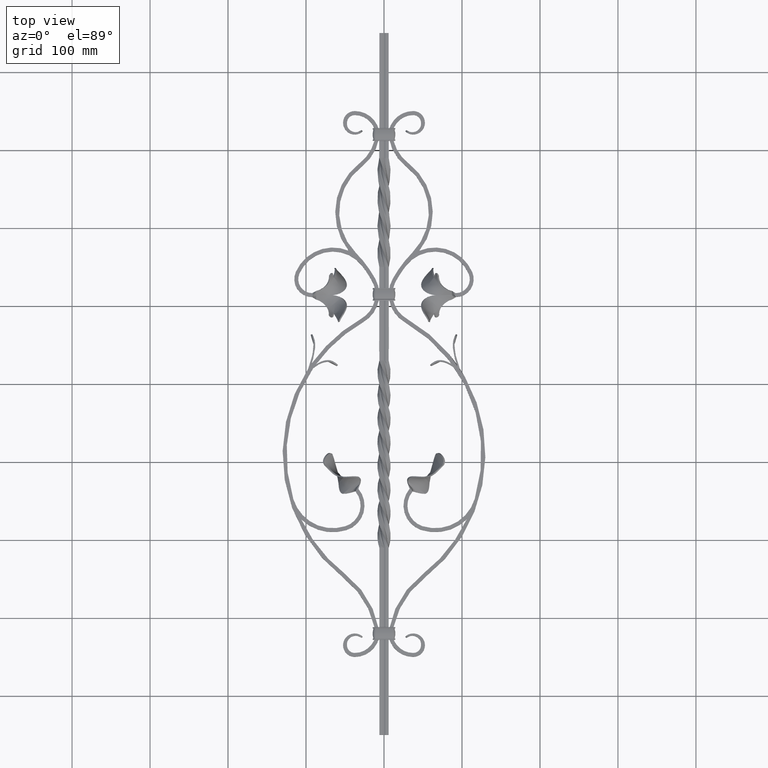
[diagram: clean part render]
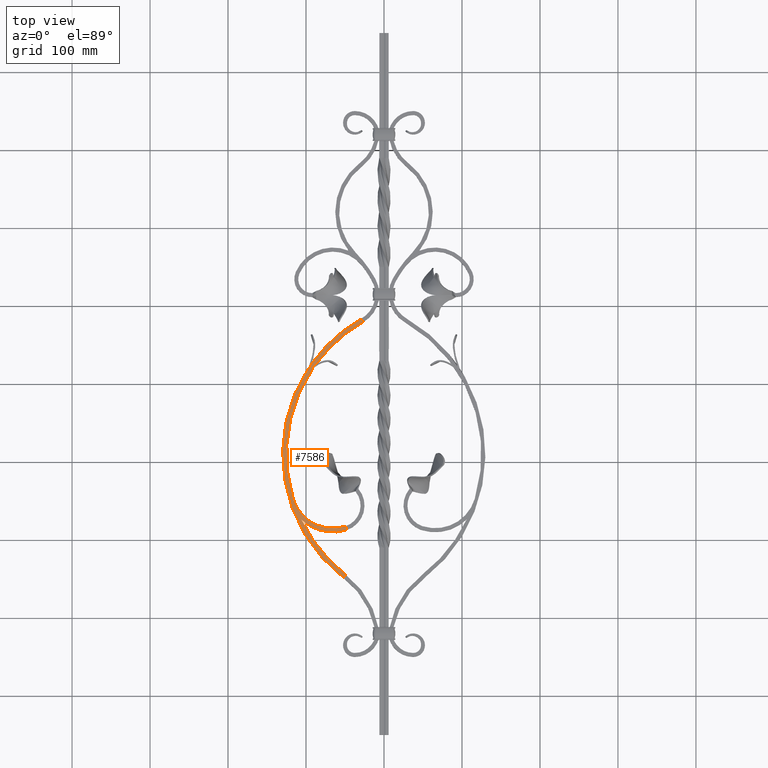
[diagram: same view with one face highlighted and labeled with its STEP entity id]
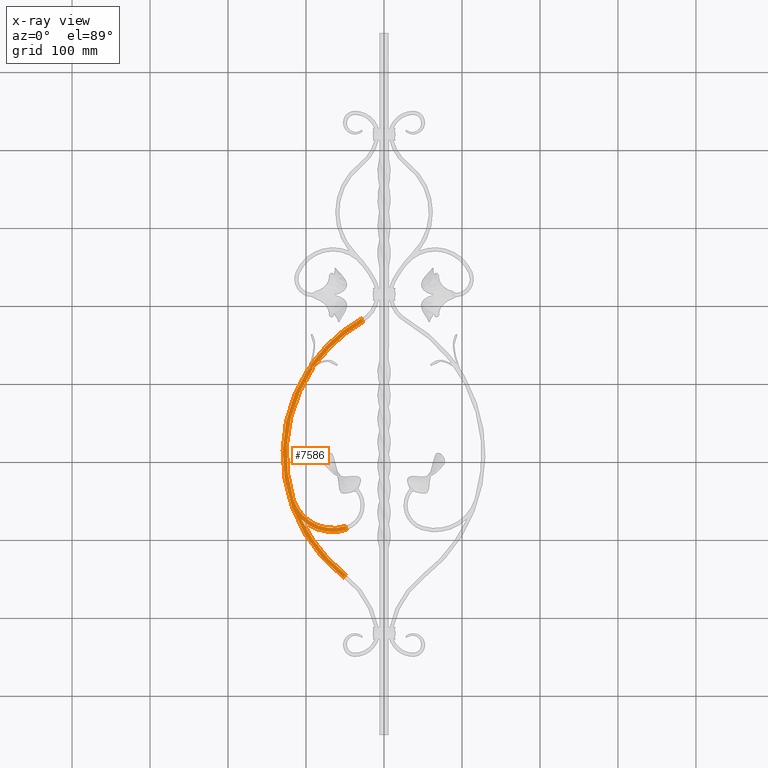
[diagram: x-ray of the same camera — body ghosted, the highlighted face saturated]
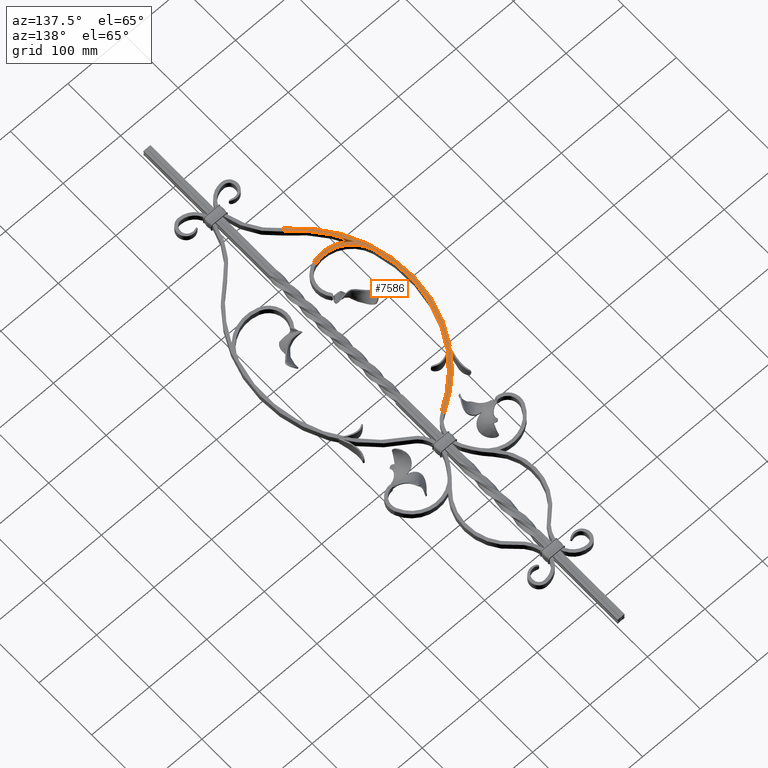
[diagram: same view with one face highlighted and labeled with its STEP entity id]
A machine part, top view. The second image highlights one B-rep face of the part: STEP entity #7586.
The next image is the same camera in x-ray: the body ghosted, the highlighted face saturated — about 0% of this face is hidden behind the body in this view.
A second angle (auxiliary view) of the same face is appended — the face is thin or edge-on in the first view.
In plain terms, the highlighted planar face has unit normal (0, 0, 1).
Its self-contained STEP definition (entity closure, byte-faithful):
#441 = CARTESIAN_POINT ( 'NONE',  ( -92.68707954751030798, 21.12756464451187455, 6.000000000000000000 ) ) ;
#1417 = ORIENTED_EDGE ( 'NONE', *, *, #10354, .F. ) ;
#2220 = VERTEX_POINT ( 'NONE', #42111 ) ;
#2648 = DIRECTION ( 'NONE',  ( 1.000000000000000000, 0.000000000000000000, -0.000000000000000000 ) ) ;
#3033 = CIRCLE ( 'NONE', #44282, 53.00000000000003553 ) ;
#4546 = CARTESIAN_POINT ( 'NONE',  ( -89.33199035881801819, 23.76567454288623082, 6.000000000000002665 ) ) ;
#4735 = CARTESIAN_POINT ( 'NONE',  ( -92.68707954751032219, 21.12756464451187810, 6.000000000000001776 ) ) ;
#5580 = VERTEX_POINT ( 'NONE', #45785 ) ;
#5993 = CARTESIAN_POINT ( 'NONE',  ( -49.05424102247574325, -244.4911442810934545, 6.000000000000000000 ) ) ;
#6283 = ORIENTED_EDGE ( 'NONE', *, *, #12544, .F. ) ;
#6460 = DIRECTION ( 'NONE',  ( -0.4961335752352377670, 0.8682462067433986963, 0.000000000000000000 ) ) ;
#6761 = CARTESIAN_POINT ( 'NONE',  ( -49.05424102247577167, -244.4911442810934830, 6.000000000000000000 ) ) ;
#6827 = CARTESIAN_POINT ( 'NONE',  ( -92.76190309228640274, 26.26098681829976300, 6.000000000000000000 ) ) ;
#6929 = CARTESIAN_POINT ( 'NONE',  ( -26.69155741923248826, 79.40190552352058262, 6.000000000000000000 ) ) ;
#7039 = VECTOR ( 'NONE', #17590, 1000.000000000000114 ) ;
#7117 = EDGE_CURVE ( 'NONE', #45499, #17498, #39099, .T. ) ;
#7206 = LINE ( 'NONE', #8424, #32608 ) ;
#7507 = CIRCLE ( 'NONE', #27159, 195.1081432478146667 ) ;
#7586 = ADVANCED_FACE ( 'NONE', ( #36505 ), #10287, .T. ) ;
#7930 = CARTESIAN_POINT ( 'NONE',  ( -91.03524294540049766, 19.99998500655710743, 6.000000000000001776 ) ) ;
#8424 = CARTESIAN_POINT ( 'NONE',  ( -47.89980786186133344, -187.2165890111591580, 6.000000000000000000 ) ) ;
#8585 = EDGE_CURVE ( 'NONE', #51696, #53075, #18382, .T. ) ;
#8860 = VERTEX_POINT ( 'NONE', #27640 ) ;
#9372 = EDGE_CURVE ( 'NONE', #25676, #37762, #53118, .T. ) ;
#9963 = EDGE_CURVE ( 'NONE', #35202, #5580, #3033, .T. ) ;
#10045 = ORIENTED_EDGE ( 'NONE', *, *, #49879, .F. ) ;
#10144 = ORIENTED_EDGE ( 'NONE', *, *, #18787, .F. ) ;
#10287 = PLANE ( 'NONE',  #34968 ) ;
#10354 = EDGE_CURVE ( 'NONE', #51696, #35202, #52428, .T. ) ;
#10403 = CARTESIAN_POINT ( 'NONE',  ( -92.68707954751032219, 21.12756464451187810, 6.000000000000001776 ) ) ;
#10970 = ORIENTED_EDGE ( 'NONE', *, *, #53336, .T. ) ;
#11957 = CARTESIAN_POINT ( 'NONE',  ( -87.55347316067336294, 24.93477423794779213, 6.000000000000000000 ) ) ;
#12171 = DIRECTION ( 'NONE',  ( -0.4961335752352377670, 0.8682462067433986963, 0.000000000000000000 ) ) ;
#12544 = EDGE_CURVE ( 'NONE', #2220, #40601, #7507, .T. ) ;
#13085 = AXIS2_PLACEMENT_3D ( 'NONE', #32931, #20230, #12171 ) ;
#14299 = AXIS2_PLACEMENT_3D ( 'NONE', #25065, #21518, #29550 ) ;
#15551 = DIRECTION ( 'NONE',  ( 0.000000000000000000, 0.000000000000000000, 1.000000000000000000 ) ) ;
#16274 = CARTESIAN_POINT ( 'NONE',  ( -97.05426983088500492, 19.99998500655710032, 6.000000000000000000 ) ) ;
#16503 = VERTEX_POINT ( 'NONE', #45197 ) ;
#17498 = VERTEX_POINT ( 'NONE', #11957 ) ;
#17590 = DIRECTION ( 'NONE',  ( -0.8259183010549199233, 0.5637898189773867808, -0.000000000000000000 ) ) ;
#18382 = LINE ( 'NONE', #441, #7039 ) ;
#18511 = B_SPLINE_CURVE_WITH_KNOTS ( 'NONE', 3,
 ( #42991, #4546, #25984, #4735 ),
 .UNSPECIFIED., .F., .F.,
 ( 4, 4 ),
 ( 0.03132545314710610124, 0.03769082985827833937 ),
 .UNSPECIFIED. ) ;
#18679 = CARTESIAN_POINT ( 'NONE',  ( -52.10799322078705842, -248.4502600297560946, 6.000000000000000000 ) ) ;
#18787 = EDGE_CURVE ( 'NONE', #5580, #16503, #7206, .T. ) ;
#19087 = DIRECTION ( 'NONE',  ( -0.4961335752352377670, 0.8682462067433986963, 0.000000000000000000 ) ) ;
#19806 = DIRECTION ( 'NONE',  ( 0.000000000000000000, 0.000000000000000000, 1.000000000000000000 ) ) ;
#20006 = ORIENTED_EDGE ( 'NONE', *, *, #28323, .T. ) ;
#20230 = DIRECTION ( 'NONE',  ( 0.000000000000000000, 0.000000000000000000, 1.000000000000000000 ) ) ;
#20532 = CIRCLE ( 'NONE', #13085, 200.1081432478146098 ) ;
#20552 = CARTESIAN_POINT ( 'NONE',  ( -95.38354908593575487, 18.90057962527309598, 6.000000000000000000 ) ) ;
#20656 = CARTESIAN_POINT ( 'NONE',  ( -29.17222529540864784, 83.74313655723759098, 6.000000000000000000 ) ) ;
#20744 = DIRECTION ( 'NONE',  ( 0.3060664284284465575, -0.9520101582383744265, 0.000000000000000000 ) ) ;
#20907 = CARTESIAN_POINT ( 'NONE',  ( 70.10814324781469509, -89.99999975614214520, 6.000000000000000000 ) ) ;
#21518 = DIRECTION ( 'NONE',  ( 0.000000000000000000, 0.000000000000000000, 1.000000000000000000 ) ) ;
#22586 = ORIENTED_EDGE ( 'NONE', *, *, #55405, .F. ) ;
#23077 = ORIENTED_EDGE ( 'NONE', *, *, #43384, .T. ) ;
#24453 = CARTESIAN_POINT ( 'NONE',  ( -92.76190309228640274, 26.26098681829976300, 6.000000000000000000 ) ) ;
#24892 = CARTESIAN_POINT ( 'NONE',  ( -97.05426983088500492, 19.99998500655710032, 6.000000000000000000 ) ) ;
#25065 = CARTESIAN_POINT ( 'NONE',  ( -65.65166071071115539, -131.9999998333333338, 6.000000000000000000 ) ) ;
#25144 = B_SPLINE_CURVE_WITH_KNOTS ( 'NONE', 3,
 ( #20552, #54003, #28559, #24453 ),
 .UNSPECIFIED., .F., .F.,
 ( 4, 4 ),
 ( 0.000000000000000000, 0.007812986087637217858 ),
 .UNSPECIFIED. ) ;
#25676 = VERTEX_POINT ( 'NONE', #20656 ) ;
#25984 = CARTESIAN_POINT ( 'NONE',  ( -91.03766067422127151, 22.48838933608381652, 6.000000000000003553 ) ) ;
#26095 = CIRCLE ( 'NONE', #14299, 58.00000000000002132 ) ;
#26217 = ORIENTED_EDGE ( 'NONE', *, *, #8585, .T. ) ;
#26671 = VECTOR ( 'NONE', #37650, 1000.000000000000000 ) ;
#27159 = AXIS2_PLACEMENT_3D ( 'NONE', #27637, #49515, #19087 ) ;
#27637 = CARTESIAN_POINT ( 'NONE',  ( 70.10814324781469509, -89.99999975614214520, 6.000000000000000000 ) ) ;
#27640 = CARTESIAN_POINT ( 'NONE',  ( -95.38354908593575487, 18.90057962527309598, 6.000000000000000000 ) ) ;
#28323 = EDGE_CURVE ( 'NONE', #45499, #25676, #45792, .T. ) ;
#28559 = CARTESIAN_POINT ( 'NONE',  ( -93.58217868092637559, 23.78901441854497278, 6.000000000000000000 ) ) ;
#29049 = ORIENTED_EDGE ( 'NONE', *, *, #41888, .F. ) ;
#29152 = DIRECTION ( 'NONE',  ( 0.000000000000000000, 0.000000000000000000, 1.000000000000000000 ) ) ;
#29550 = DIRECTION ( 'NONE',  ( -0.9553274066904219319, -0.2955495661071982361, 0.000000000000000000 ) ) ;
#29614 = CARTESIAN_POINT ( 'NONE',  ( -26.69155741923244562, 79.40190552352061104, 6.000000000000000000 ) ) ;
#30030 = DIRECTION ( 'NONE',  ( 0.000000000000000000, 0.000000000000000000, 1.000000000000000000 ) ) ;
#30284 = CARTESIAN_POINT ( 'NONE',  ( 70.10814324781469509, -89.99999975614214520, 6.000000000000000000 ) ) ;
#31563 = DIRECTION ( 'NONE',  ( -0.6107504396622622789, -0.7918231497325354251, 0.000000000000000000 ) ) ;
#31776 = AXIS2_PLACEMENT_3D ( 'NONE', #30284, #29152, #47288 ) ;
#32232 = ORIENTED_EDGE ( 'NONE', *, *, #9963, .F. ) ;
#32608 = VECTOR ( 'NONE', #20744, 1000.000000000000000 ) ;
#32841 = LINE ( 'NONE', #5993, #53594 ) ;
#32931 = CARTESIAN_POINT ( 'NONE',  ( 70.10814324781469509, -89.99999975614214520, 6.000000000000000000 ) ) ;
#34354 = DIRECTION ( 'NONE',  ( -0.9553274066904219319, -0.2955495661071984026, 0.000000000000000000 ) ) ;
#34392 = ORIENTED_EDGE ( 'NONE', *, *, #9372, .T. ) ;
#34431 = VECTOR ( 'NONE', #49737, 1000.000000000000000 ) ;
#34968 = AXIS2_PLACEMENT_3D ( 'NONE', #6929, #19806, #2648 ) ;
#35202 = VERTEX_POINT ( 'NONE', #51838 ) ;
#36379 = AXIS2_PLACEMENT_3D ( 'NONE', #49213, #15551, #6460 ) ;
#36505 = FACE_OUTER_BOUND ( 'NONE', #50584, .T. ) ;
#37650 = DIRECTION ( 'NONE',  ( -0.8353603724746230252, 0.5497026906420042769, -0.000000000000000000 ) ) ;
#37762 = VERTEX_POINT ( 'NONE', #6827 ) ;
#37932 = VERTEX_POINT ( 'NONE', #16274 ) ;
#38962 = VERTEX_POINT ( 'NONE', #18679 ) ;
#39099 = CIRCLE ( 'NONE', #36379, 195.1081432478146667 ) ;
#40601 = VERTEX_POINT ( 'NONE', #6761 ) ;
#40777 = LINE ( 'NONE', #24892, #26671 ) ;
#41333 = CARTESIAN_POINT ( 'NONE',  ( -26.69155741923243141, 79.40190552352061104, 6.000000000000000000 ) ) ;
#41888 = EDGE_CURVE ( 'NONE', #17498, #53075, #18511, .T. ) ;
#42111 = CARTESIAN_POINT ( 'NONE',  ( -106.2805471445300043, -173.3919505864430732, 6.000000000000000000 ) ) ;
#42991 = CARTESIAN_POINT ( 'NONE',  ( -87.55347316067336294, 24.93477423794779213, 6.000000000000000000 ) ) ;
#43112 = CARTESIAN_POINT ( 'NONE',  ( -65.65166071071115539, -131.9999998333333338, 6.000000000000000000 ) ) ;
#43384 = EDGE_CURVE ( 'NONE', #37932, #38962, #20532, .T. ) ;
#44282 = AXIS2_PLACEMENT_3D ( 'NONE', #43112, #30030, #34354 ) ;
#45197 = CARTESIAN_POINT ( 'NONE',  ( -47.89980786186134765, -187.2165890111591011, 6.000000000000000000 ) ) ;
#45499 = VERTEX_POINT ( 'NONE', #29614 ) ;
#45785 = CARTESIAN_POINT ( 'NONE',  ( -49.43014000400356167, -182.4565382199672285, 6.000000000000000000 ) ) ;
#45792 = LINE ( 'NONE', #41333, #34431 ) ;
#45985 = ORIENTED_EDGE ( 'NONE', *, *, #54526, .T. ) ;
#46492 = DIRECTION ( 'NONE',  ( 0.000000000000000000, 0.000000000000000000, 1.000000000000000000 ) ) ;
#47288 = DIRECTION ( 'NONE',  ( -0.4961335752352377670, 0.8682462067433986963, 0.000000000000000000 ) ) ;
#47882 = AXIS2_PLACEMENT_3D ( 'NONE', #20907, #46492, #50821 ) ;
#49213 = CARTESIAN_POINT ( 'NONE',  ( 70.10814324781469509, -89.99999975614214520, 6.000000000000000000 ) ) ;
#49515 = DIRECTION ( 'NONE',  ( 0.000000000000000000, 0.000000000000000000, 1.000000000000000000 ) ) ;
#49737 = DIRECTION ( 'NONE',  ( -0.4961335752352382111, 0.8682462067433984743, 0.000000000000000000 ) ) ;
#49879 = EDGE_CURVE ( 'NONE', #8860, #37762, #25144, .T. ) ;
#50584 = EDGE_LOOP ( 'NONE', ( #29049, #52368, #20006, #34392, #10045, #45985, #23077, #22586, #6283, #10970, #10144, #32232, #1417, #26217 ) ) ;
#50821 = DIRECTION ( 'NONE',  ( -0.4961335752352377670, 0.8682462067433986963, 0.000000000000000000 ) ) ;
#51696 = VERTEX_POINT ( 'NONE', #7930 ) ;
#51838 = CARTESIAN_POINT ( 'NONE',  ( -116.2840132653034431, -147.6641268370148055, 6.000000000000000000 ) ) ;
#52368 = ORIENTED_EDGE ( 'NONE', *, *, #7117, .F. ) ;
#52428 = CIRCLE ( 'NONE', #47882, 195.1081432478146667 ) ;
#53075 = VERTEX_POINT ( 'NONE', #10403 ) ;
#53118 = CIRCLE ( 'NONE', #31776, 200.1081432478146098 ) ;
#53336 = EDGE_CURVE ( 'NONE', #2220, #16503, #26095, .T. ) ;
#53594 = VECTOR ( 'NONE', #31563, 1000.000000000000114 ) ;
#54003 = CARTESIAN_POINT ( 'NONE',  ( -94.46596019820228207, 21.33896237336897883, 6.000000000000000000 ) ) ;
#54526 = EDGE_CURVE ( 'NONE', #8860, #37932, #40777, .T. ) ;
#55405 = EDGE_CURVE ( 'NONE', #40601, #38962, #32841, .T. ) ;